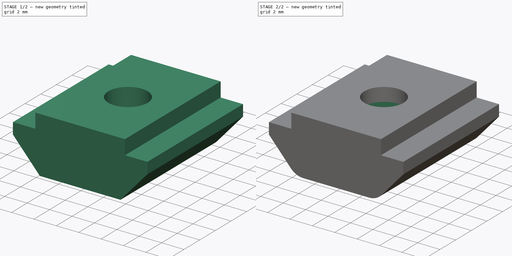
[diagram: build sequence overview — one tinted view per stage of 2, left to right]
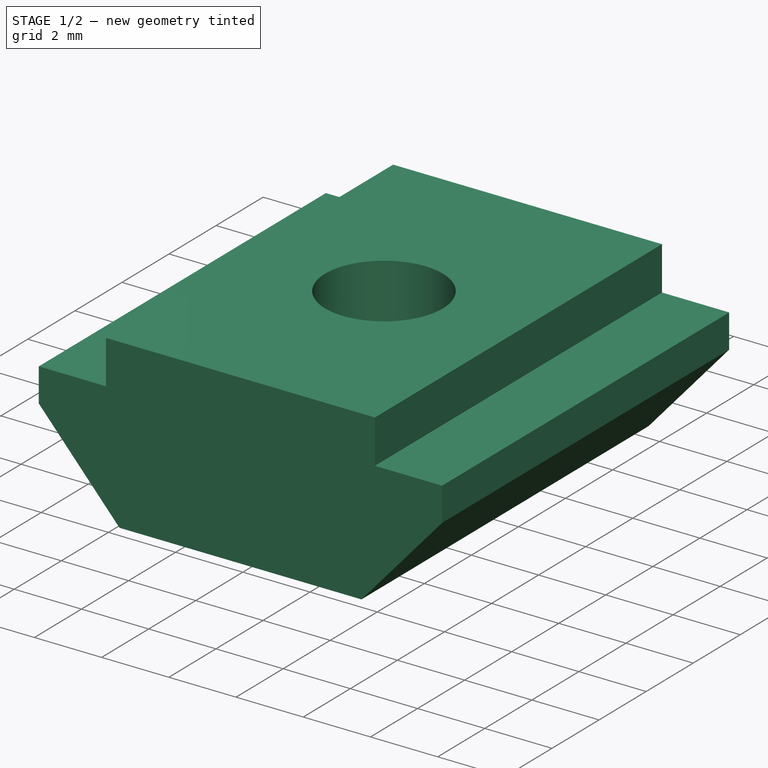
[diagram: stage 1 of 2 — iso view after this stage's code; geometry added in this stage tinted green]
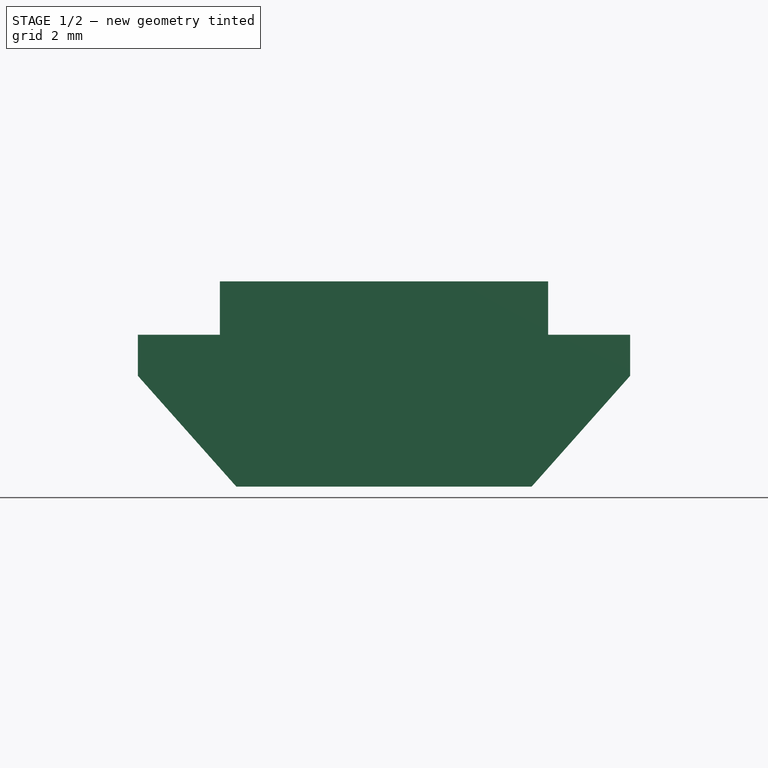
[diagram: stage 1 of 2 — front view after this stage's code; geometry added in this stage tinted green]
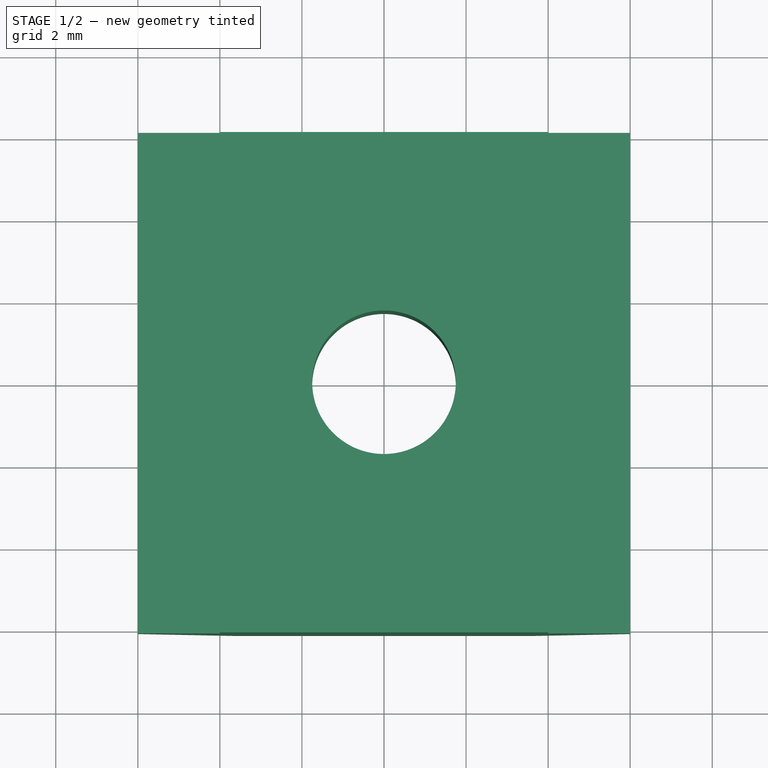
[diagram: stage 1 of 2 — top view after this stage's code; geometry added in this stage tinted green]
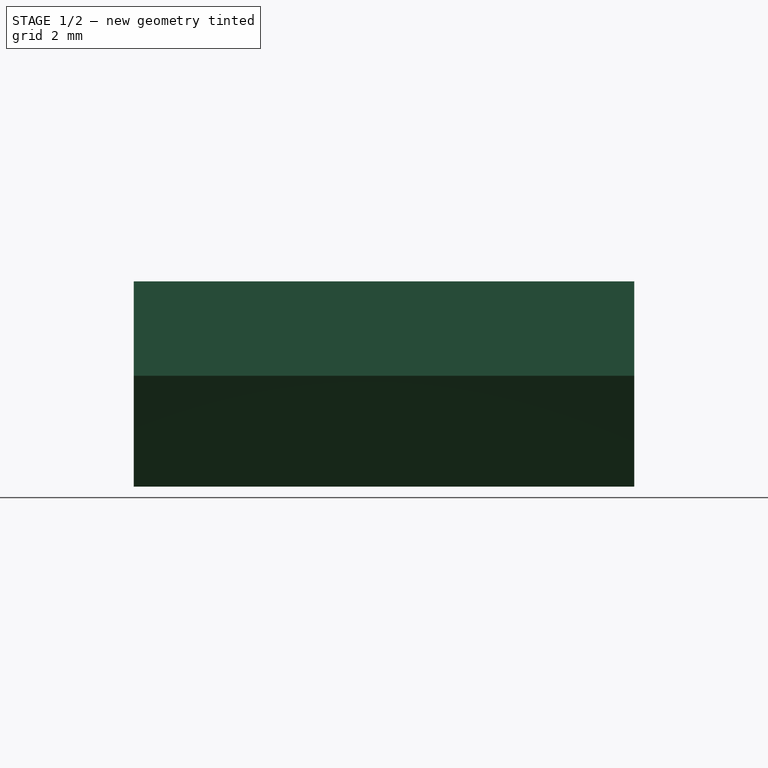
[diagram: stage 1 of 2 — right view after this stage's code; geometry added in this stage tinted green]
FCSTD DOCUMENT  (FreeCAD 0.17R13519 (Git))
Label: Eng_2020_3dp_square_nut
License: All rights reserved
LicenseURL: http://en.wikipedia.org/wiki/All_rights_reserved
objects: Sketcher::SketchObject×3, PartDesign::Pocket×2, PartDesign::Pad×1, PartDesign::Fillet×1, PartDesign::Body×1
note: 11 computed .brp shape members not serialized (recipe doc carries the construction recipe); baked Part::Feature solids carry a one-line shape summary decoded from their .brp

FEATURE [Sketcher::SketchObject] Sketch
  MapMode = 5
  Placement = pos=(0,0,0) rot=(1,0,0;1.5708rad)
  Support = -> [XZ_Plane]
  sketch-geometry (10):
    g0: LineSegment StartX=-6 StartY=3.7 StartZ=0 EndX=-4 EndY=3.7 EndZ=0
    g1: LineSegment StartX=-4 StartY=3.7 StartZ=0 EndX=-4 EndY=5 EndZ=0
    g2: LineSegment StartX=-4 StartY=5 StartZ=0 EndX=4 EndY=5 EndZ=0
    g3: LineSegment StartX=4 StartY=5 StartZ=0 EndX=4 EndY=3.7 EndZ=0
    g4: LineSegment StartX=4 StartY=3.7 StartZ=0 EndX=6 EndY=3.7 EndZ=0
    g5: LineSegment StartX=3.6 StartY=0 StartZ=0 EndX=-3.6 EndY=0 EndZ=0
    g6: LineSegment StartX=-6 StartY=3.7 StartZ=0 EndX=-6 EndY=2.7 EndZ=0
    g7: LineSegment StartX=-6 StartY=2.7 StartZ=0 EndX=-3.6 EndY=0 EndZ=0
    g8: LineSegment StartX=6 StartY=3.7 StartZ=0 EndX=6 EndY=2.7 EndZ=0
    g9: LineSegment StartX=6 StartY=2.7 StartZ=0 EndX=3.6 EndY=0 EndZ=0
  constraints (30):
    c: Horizontal(g0)
    c: Coincident(g0,g1)
    c: Vertical(g1)
    c: Coincident(g1,g2)
    c: Horizontal(g2)
    c: Coincident(g2,g3)
    c: Vertical(g3)
    c: Coincident(g3,g4)
    c: Horizontal(g4)
    c: Horizontal(g5)
    c: PointOnObject(g5,g-1)
    c: Symmetric(g5,g5,g-2)
    c: Equal(g0,g4)
    c: Equal(g3,g1)
    c: DistanceX(g5,g5) = 7.2
    c: DistanceX(g2,g2) = 8
    c: DistanceY(g3,g3) = 1.3
    c: DistanceY(g5,g1) = 5
    c: DistanceX(g0,g4) = 12
    c: Coincident(g0,g6)
    c: Vertical(g6)
    c: Coincident(g6,g7)
    c: Coincident(g7,g5)
    c: Coincident(g4,g8)
    c: Vertical(g8)
    c: Coincident(g8,g9)
    c: Coincident(g9,g5)
    c: DistanceY(g6,g6) = 1
    c: Equal(g8,g6)
    c: Equal(g9,g7)
FEATURE [PartDesign::Pad] Pad
  Length = 12.2
  Length2 = 100
  Midplane = true
  Placement = pos=(0,0,0) rot=(1,0,0;1.5708rad)
  Profile = -> Sketch
  Type = 0
FEATURE [Sketcher::SketchObject] Sketch001
  MapMode = 5
  Placement = pos=(0,-1e-12,5) rot=(0,0,1;3.14159rad)
  Support = -> [Pad]
  sketch-geometry (1):
    g0: Circle CenterX=0 CenterY=0 CenterZ=0 NormalX=0 NormalY=0 NormalZ=1 AngleXU=0 Radius=1.75
  constraints (2):
    c: Coincident(g0,g-1)
    c: Radius(g0) = 1.75
FEATURE [PartDesign::Pocket] Pocket
  BaseFeature = -> Pad
  Length = 5
  Length2 = 100
  Placement = pos=(0,0,0) rot=(1,0,0;1.5708rad)
  Profile = -> Sketch001
  Type = 1
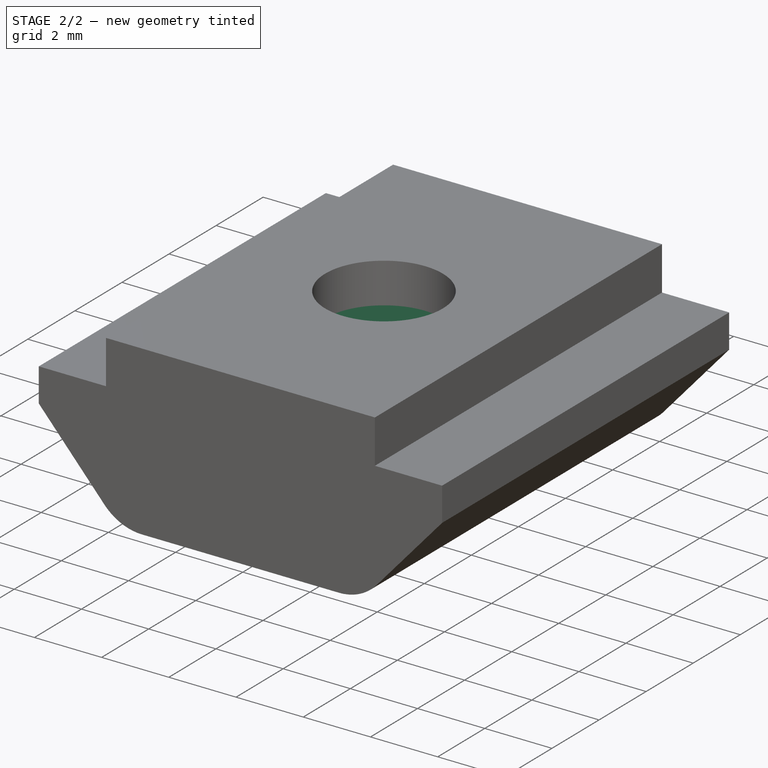
[diagram: stage 2 of 2 — iso view after this stage's code; geometry added in this stage tinted green]
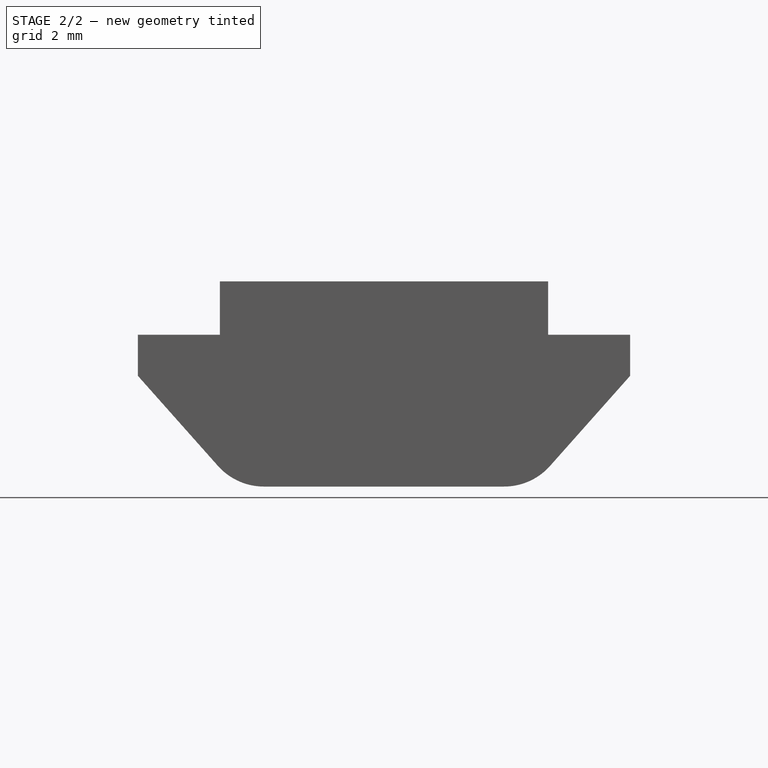
[diagram: stage 2 of 2 — front view after this stage's code; geometry added in this stage tinted green]
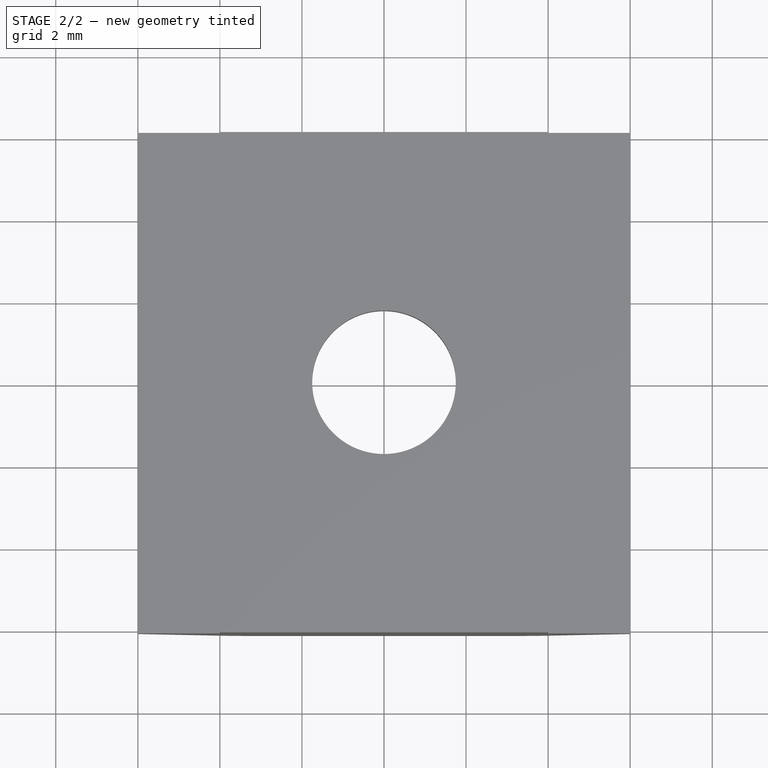
[diagram: stage 2 of 2 — top view after this stage's code; geometry added in this stage tinted green]
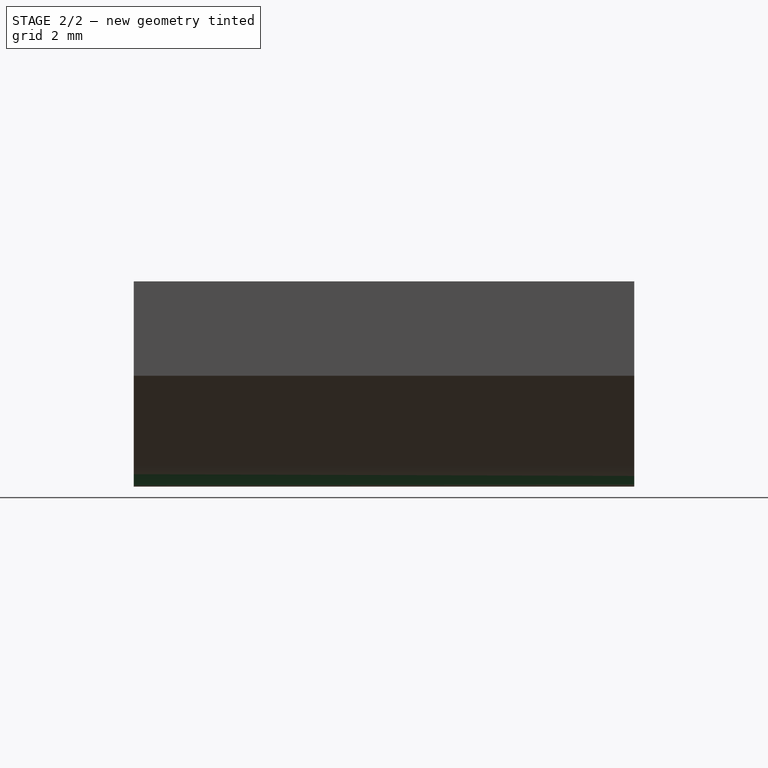
[diagram: stage 2 of 2 — right view after this stage's code; geometry added in this stage tinted green]
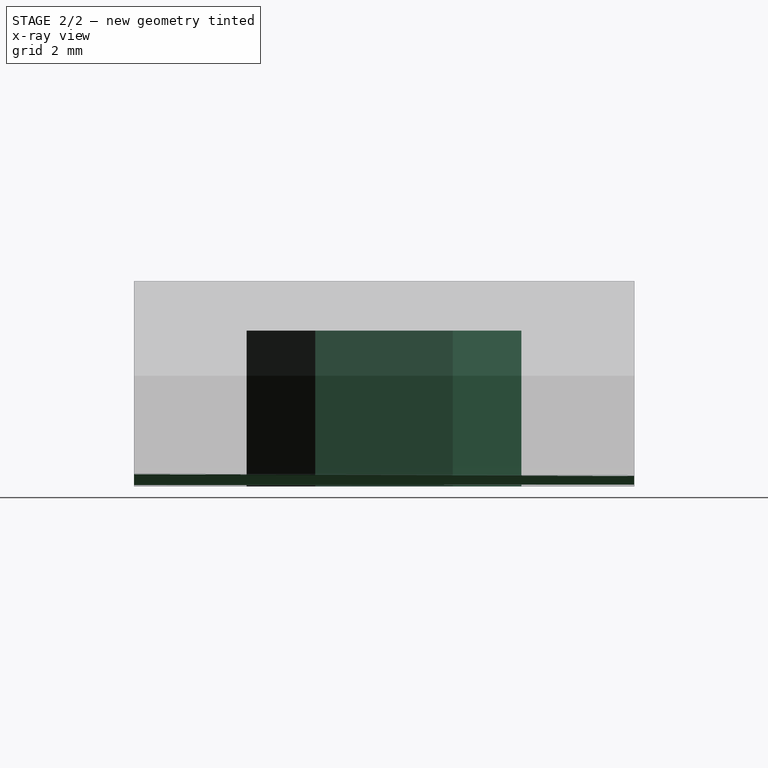
[diagram: stage 2 of 2 — x-ray composite at the right view; earlier geometry ghosted, this stage's added geometry solid]
FEATURE [Sketcher::SketchObject] Sketch002
  MapMode = 5
  Placement = pos=(0,0,0) rot=(1,0,0;3.14159rad)
  Support = -> [Pocket]
  sketch-geometry (7):
    g0: LineSegment StartX=2.9 StartY=1.67432 StartZ=0 EndX=0 EndY=3.34863 EndZ=0
    g1: LineSegment StartX=0 StartY=3.34863 StartZ=0 EndX=-2.9 EndY=1.67432 EndZ=0
    g2: LineSegment StartX=-2.9 StartY=1.67432 StartZ=0 EndX=-2.9 EndY=-1.67432 EndZ=0
    g3: LineSegment StartX=-2.9 StartY=-1.67432 StartZ=0 EndX=0 EndY=-3.34863 EndZ=0
    g4: LineSegment StartX=0 StartY=-3.34863 StartZ=0 EndX=2.9 EndY=-1.67432 EndZ=0
    g5: LineSegment StartX=2.9 StartY=-1.67432 StartZ=0 EndX=2.9 EndY=1.67432 EndZ=0
    g6: Circle [constr] CenterX=0 CenterY=0 CenterZ=0 NormalX=0 NormalY=0 NormalZ=1 AngleXU=0 Radius=3.34863
  constraints (16):
    c: Coincident(g0,g1)
    c: Coincident(g1,g2)
    c: Coincident(g2,g3)
    c: Coincident(g3,g4)
    c: Coincident(g4,g5)
    c: Coincident(g5,g0)
    c: Equal(g0, g1-g5) x5
    c: PointOnObject(g0,g6)
    c: PointOnObject(g1,g6)
    c: PointOnObject(g2,g6)
    c: PointOnObject(g3,g6)
    c: PointOnObject(g4,g6)
    c: PointOnObject(g5,g6)
    c: Coincident(g6,g-1)
    c: Vertical(g5)
    c: DistanceX(g2,g4) = 5.8
FEATURE [PartDesign::Pocket] Pocket001
  BaseFeature = -> Pocket
  Length = 3.8
  Length2 = 100
  Placement = pos=(0,0,0) rot=(1,0,0;1.5708rad)
  Profile = -> Sketch002
  Type = 0
FEATURE [PartDesign::Fillet] Fillet
  Base = -> Pocket001 [Edge26,Edge8]
  BaseFeature = -> Pocket001
  Placement = pos=(0,0,0) rot=(1,0,0;1.5708rad)
  Radius = 1.5
FEATURE [PartDesign::Body] Body
  Group = -> [Sketch,Pad,Sketch001,Pocket,Sketch002,Pocket001,Fillet]
  Origin = -> Origin
  Tip = -> Fillet
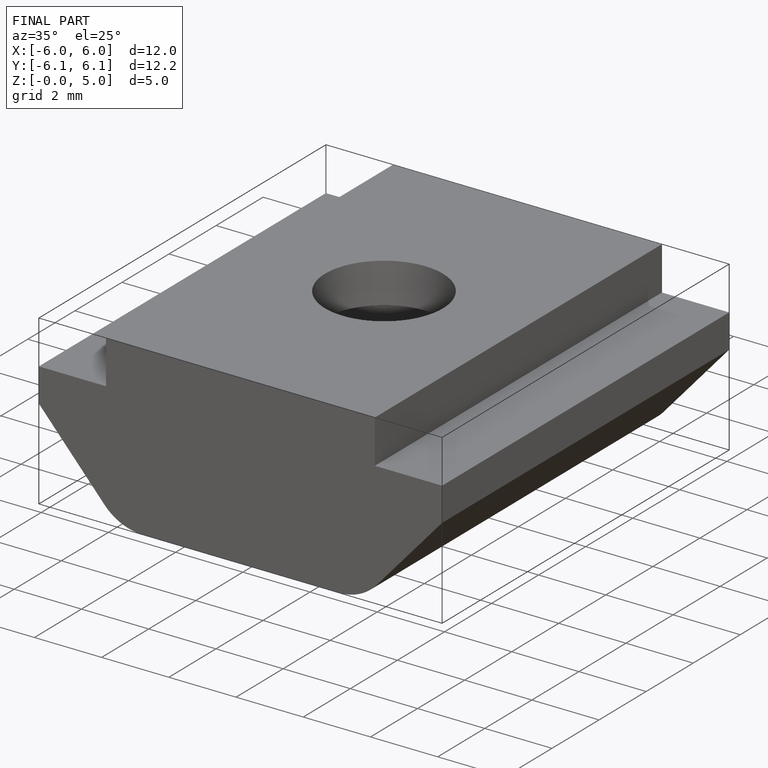
[diagram: finished part — iso view with bounding-box wireframe]
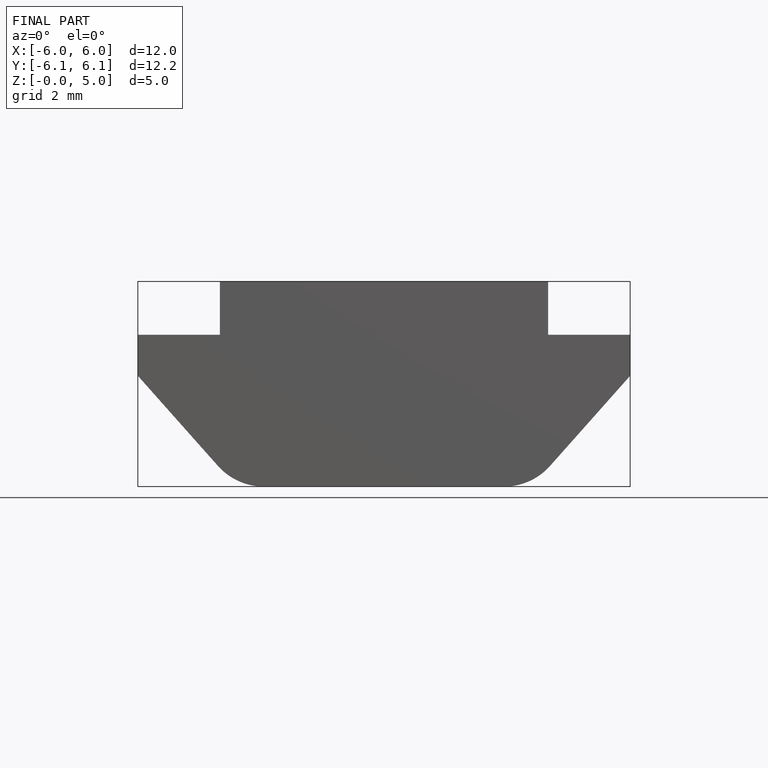
[diagram: finished part — front view with bounding-box wireframe]
